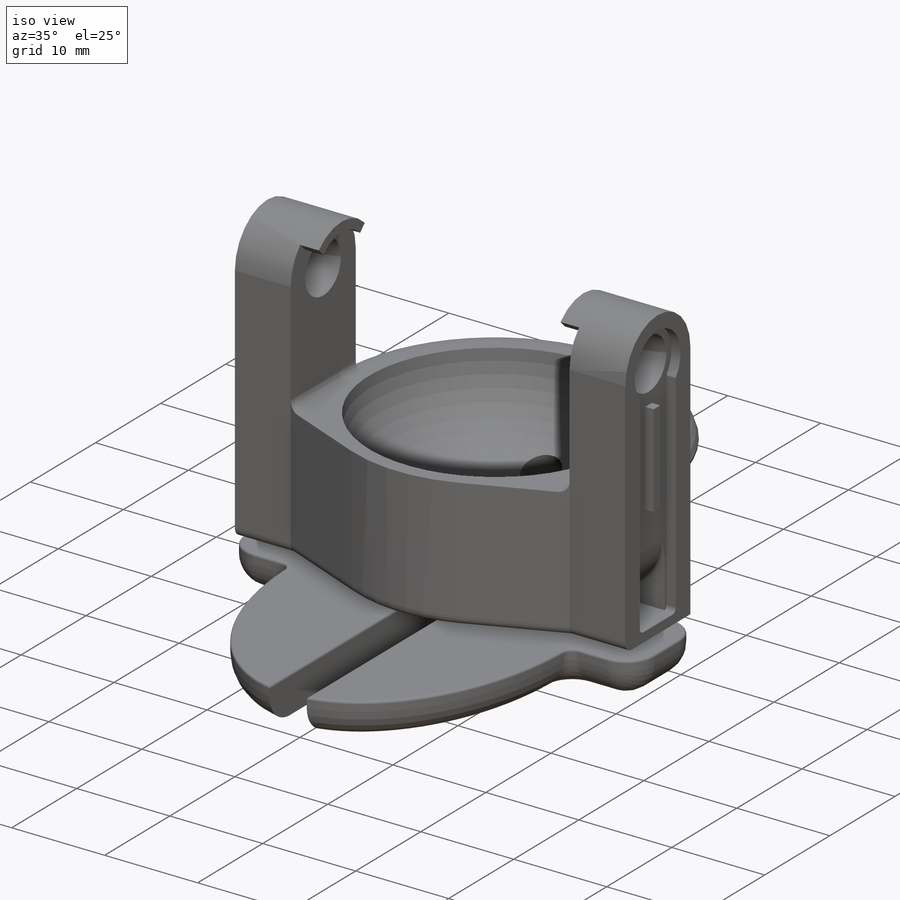
[diagram: iso view]
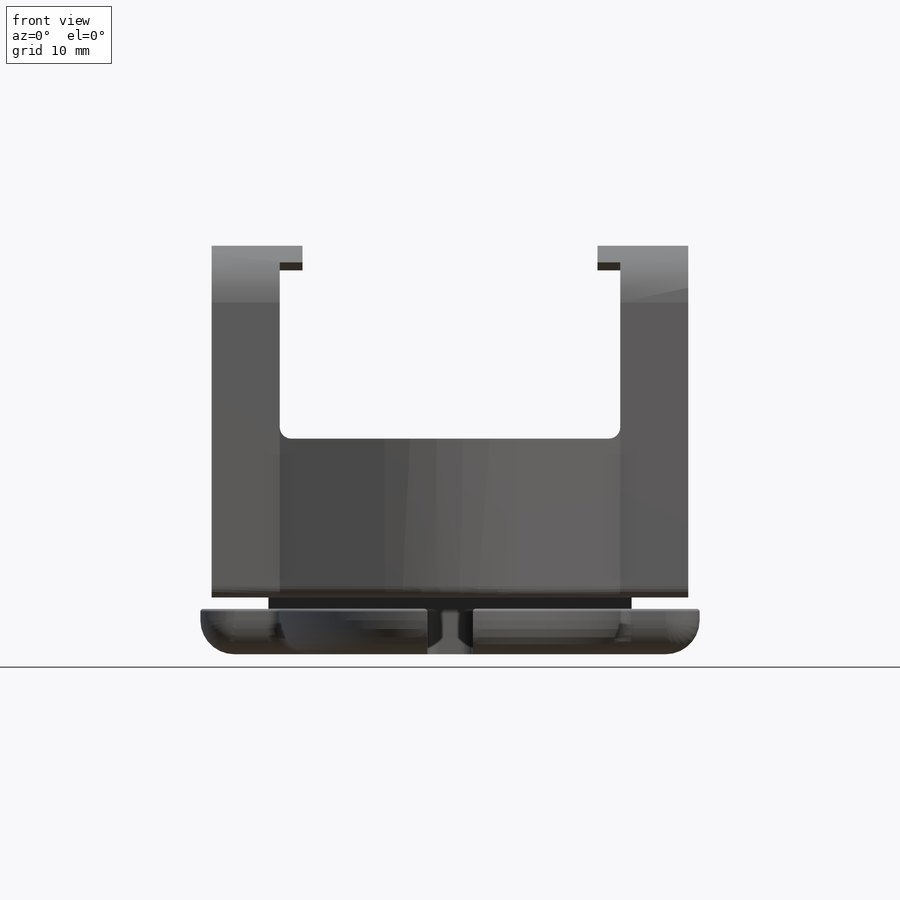
[diagram: front view]
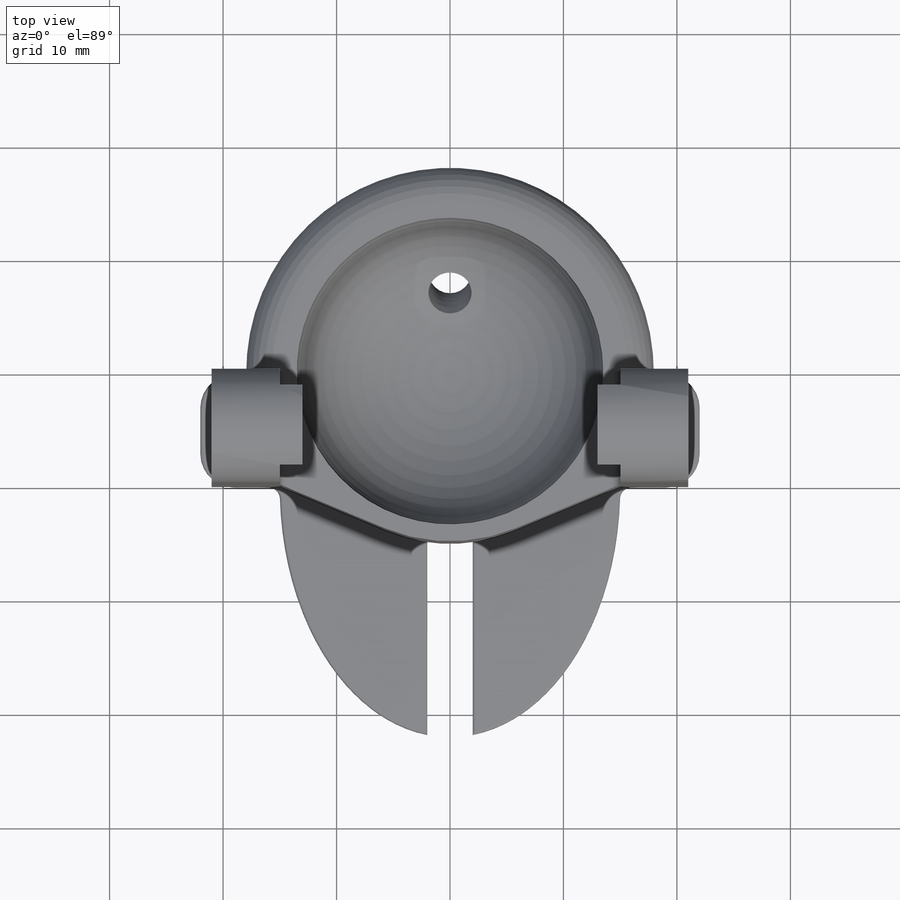
[diagram: top view]
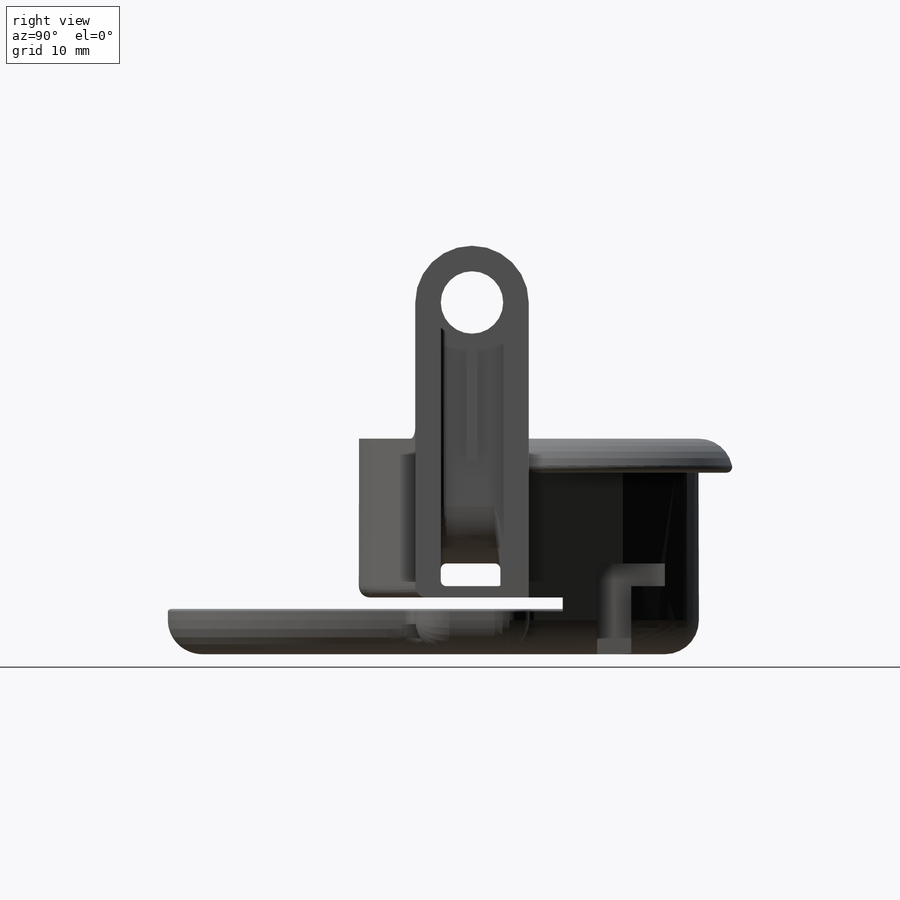
[diagram: right view]
SOLIDWORKS PART (.sldprt)
format: sldprt  version: not decoded by parser v0  size: 1,841,664 bytes
history: native  units: mm
features: sketch x32, extrude x14, fillet x11, cut_extrude x10, sweep x2, material x1, revolve x1 (+16 scaffold rows collapsed)
feature tree (87):
  scaffold x16  (default folders/planes/origin — collapsed)
  material  "Material <not specified>"
  sketch  "Sketch1"  dims[D1=13.5mm]
  revolve  "Revolve1"  Angle=360deg
  sketch  "Sketch2"  dims[D1=10.0mm]
  extrude  "Boss-Extrude1"  Depth=12mm
  sketch  "Sketch4"
  sketch  "Sketch24"
  extrude  "Boss-Extrude5"  Depth=14mm
  sketch  "Sketch8"  dims[D1=0.0mm]
  extrude  "Boss-Extrude3"  Depth=6mm
  sketch  "Sketch13"  dims[D1=0.0mm]
  extrude  "Boss-Extrude4"  Depth=6mm
  sketch  "Sketch14"  dims[D1=2.5mm]
  cut_extrude  "Cut-Extrude2"  [1 undecoded]
  sketch  "Sketch15"  dims[D1=3.25mm]
  cut_extrude  "Cut-Extrude3"  Depth=1mm
  sketch  "Sketch16"  dims[D1=3.0mm]
  cut_extrude  "Cut-Extrude4"  Depth=1mm
  sketch  "Sketch18"  dims[D1=25.0mm]
  cut_extrude  "Cut-Extrude5"  Depth=1mm
  sketch  "Sketch19"  dims[D1=25.0mm]
  cut_extrude  "Cut-Extrude6"  Depth=1mm
  sketch  "Sketch22"  dims[D1=2.0mm]
  cut_extrude  "Cut-Extrude8"  [1 undecoded]
  sketch  "Sketch28"
  extrude  "Boss-Extrude6"  Depth=11mm
  fillet  "Fillet17"  Radius=1mm
  sketch  "Sketch30"  dims[D1=5.0mm]
  cut_extrude  "Cut-Extrude13"  Depth=5mm
  sketch  "Sketch52"
  sketch  "Sketch54"
  sketch  "Sketch53"  dims[D1=3.0mm]
  cut_extrude  "Cut-Extrude26"  [1 undecoded]
  fillet  "Fillet22"  Radius=5mm
  fillet  "Fillet19"  Radius=0.5mm
  sketch  "Sketch31"  dims[D1=2.0mm]
  sketch  "Sketch32"
  extrude  "Boss-Extrude7"  Depth=2mm
  sketch  "Sketch33"
  extrude  "Boss-Extrude8"  Depth=2mm
  sketch  "Sketch37"  dims[D1=0.0mm]
  extrude  "Boss-Extrude9"  Depth=5mm
  sketch  "Sketch38"  dims[D1=5.0mm]
  extrude  "Boss-Extrude10"  Depth=10mm
  sketch  "Sketch40"  dims[D1=15.0mm]
  extrude  "Boss-Extrude11"  Depth=4mm
  sketch  "Sketch41"  dims[D1=4.0mm]
  cut_extrude  "Cut-Extrude19"  [1 undecoded]
  sketch  "Sketch48"
  extrude  "Boss-Extrude14"  Depth=4mm
  sketch  "Sketch49"
  extrude  "Boss-Extrude15"  Depth=4mm
  fillet  "Fillet26"  Radius=3mm
  sketch  "Sketch42"  dims[D1=0.0mm]
  cut_extrude  "Cut-Extrude21"  Depth=3mm
  sketch  "Sketch44"  dims[D1=10.0mm]
  extrude  "Boss-Extrude12"  Depth=0.9mm
  sketch  "Sketch45"  dims[D1=1.0mm]
  extrude  "Boss-Extrude13"  Depth=0.9mm
  sketch  "Sketch46"  dims[D1=2.2mm]
  sketch  "3DSketch1"  dims[c1.D1=~10.000624mm c2.D1=6.0mm c3.D1=6.5mm c4.D1=~89.108681deg]
  sweep  "Cut-Sweep3"
  sketch  "Sketch58"  dims[D1=3.0mm]
  sweep  "Sweep1"
  fillet  "Fillet28"  Radius=1mm
  fillet  "Fillet29"  Radius=0.25mm
  fillet  "Fillet30"  Radius=3mm
  fillet  "Fillet32"  Radius=0.75mm
  fillet  "Fillet36"  Radius=0.5mm
  fillet  "Fillet37"  Radius=1mm
  fillet  "Fillet42"  Radius=3mm
decode coverage: 55 of 70 modeling features carry decoded parameters
note: ~ marks probable driven/reference dimensions
note: 4 parameter values undecoded
summary: no parameter record found for 4 features
note: suppression state not decoded; provenance and decode notes live in map.json
